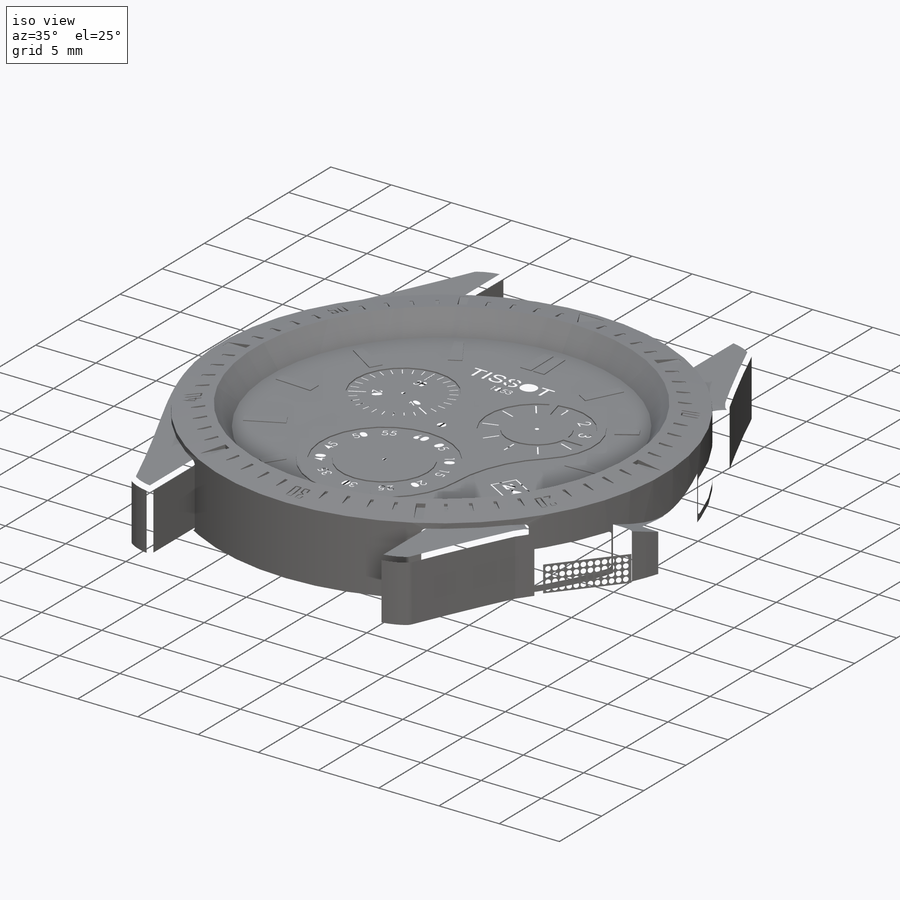
[diagram: iso view]
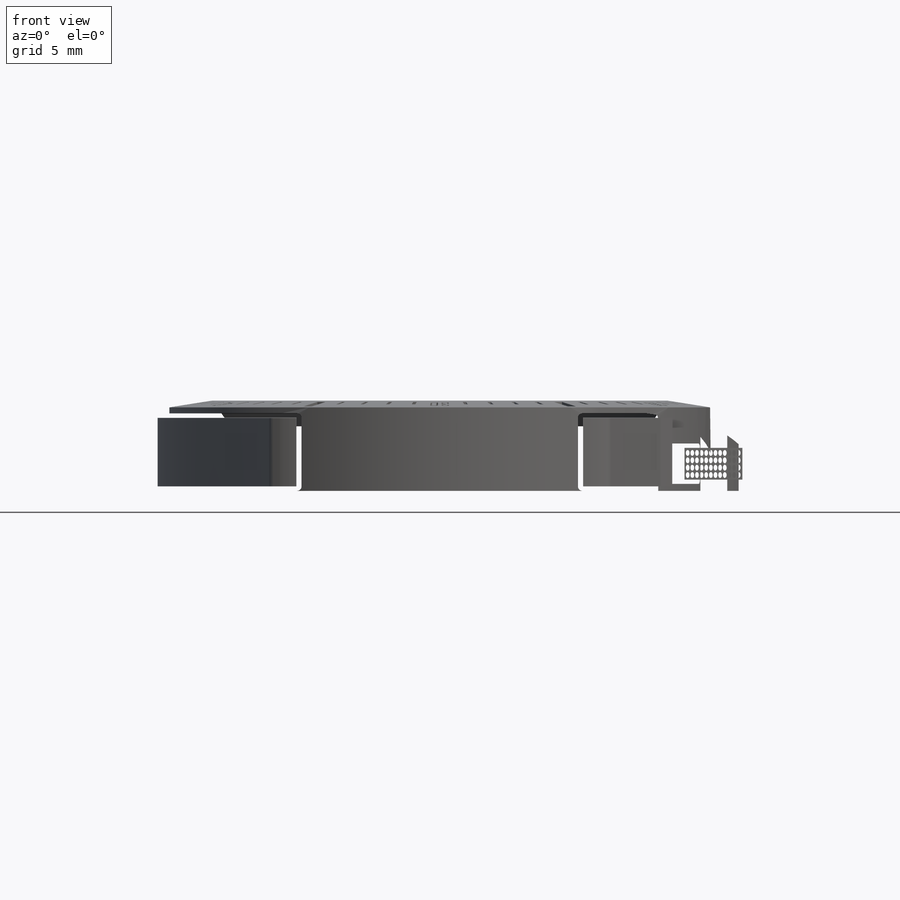
[diagram: front view]
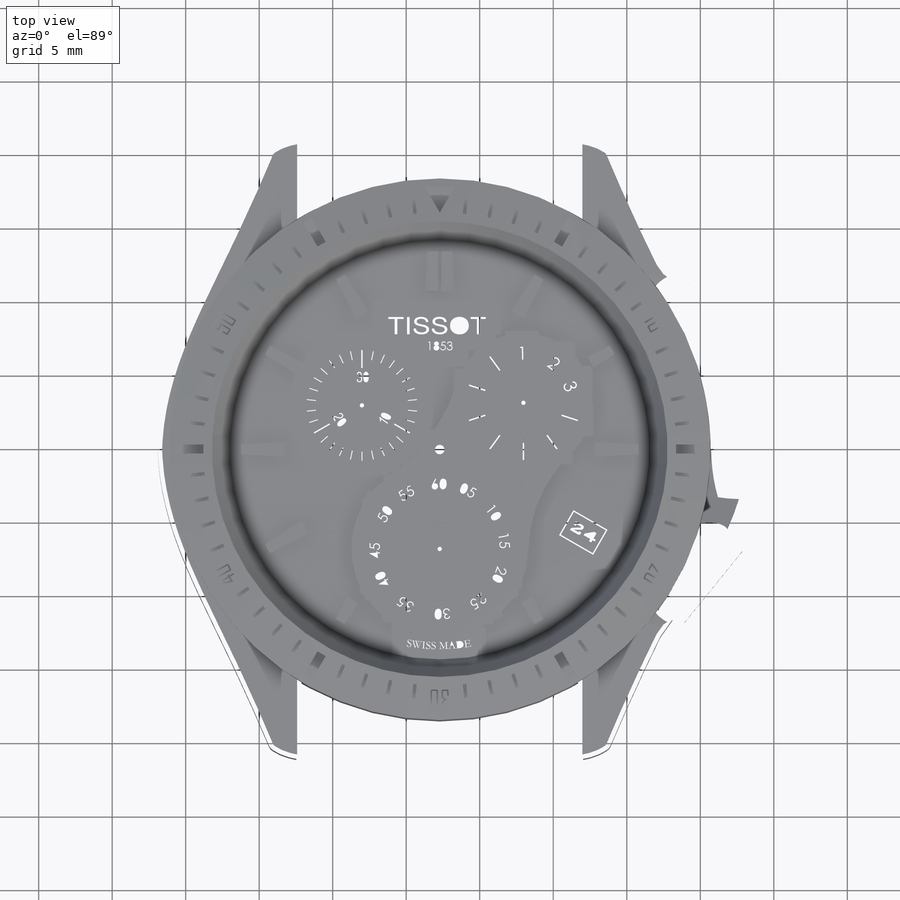
[diagram: top view]
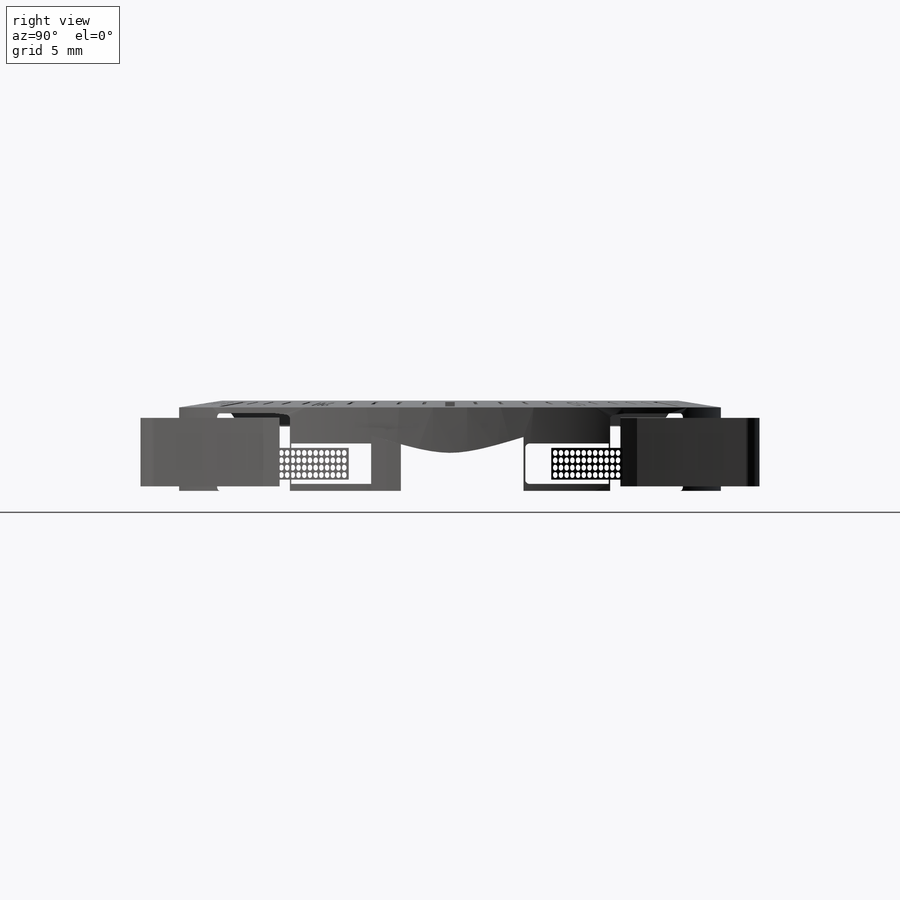
[diagram: right view]
SOLIDWORKS PART (.sldprt)
format: sldprt  version: not decoded by parser v0  size: 7,666,688 bytes
history: native  units: mm
features: sketch x53, cut_extrude x20, extrude x19, pattern_circular x8, plane x6, fillet x5, chamfer x2, dome x2, pattern_linear x2, material x1, mirror x1 (+11 scaffold rows collapsed)
feature tree (130):
  scaffold x11  (default folders/planes/origin — collapsed)
  material  "Material <not specified>"
  sketch  "Sketch2"  dims[D1=630.0mm]
  extrude  "Boss-Extrude1"  Depth=100mm
  sketch  "Sketch3"  dims[D1=530.0mm]
  cut_extrude  "Cut-Extrude1"  Depth=30mm
  chamfer  "Chamfer1"  Distance=30mm Angle=35deg
  chamfer  "Chamfer2"  Distance=8mm Angle=81deg
  sketch  "Sketch5"  dims[c1.D1=~282.267853mm c2.D1=30.0deg c2.D2=8.5mm c2.D3=51.0mm c2.D4=5.8mm]
  extrude  "Boss-Extrude2"  Depth=1mm
  pattern_circular  "CirPattern1"  Count=11 Angle=30deg
  sketch  "Sketch6"  dims[D1=405.0mm]
  sketch  "Sketch7"
  cut_extrude  "Cut-Extrude3"  Depth=1mm
  pattern_circular  "CirPattern2"  Count=6 Angle=30deg
  sketch  "Sketch9"  dims[c1.D2=30.0deg c1.D3=~206.527169mm c1.D4=~206.527169mm c2.D4=30.0deg c3.D4=4.0mm]
  extrude  "Boss-Extrude4"  Depth=1mm
  sketch  "Sketch4"  dims[D1=134.0mm D2=140.0mm D3=180.0mm D4=85.0mm D5=122.0mm D8=~355.473442mm D6=11.0mm D7=13.0mm]
  extrude  "Boss-Extrude6"  Depth=1.5mm
  cut_extrude  "Cut-Extrude5"  [1 undecoded]
  sketch  "Sketch4<9>"  dims[D1=1.5mm]
  plane  "Plane1"  Offset=15mm
  sketch  "Sketch11"
  extrude  "Boss-Extrude7"  Depth=70mm
  sketch  "Sketch12"  dims[D1=12.0mm]
  extrude  "Boss-Extrude8"  Depth=90mm
  cut_extrude  "Cut-Extrude6"  [1 undecoded]
  sketch  "Sketch11<2>"
  plane  "Plane2"  Offset=330mm
  sketch  "Sketch13"
  sketch  "Sketch14"
  sketch  "Sketch18"  dims[D1=20.0mm D2=30.0mm]
  cut_extrude  "Cut-Extrude9"  Depth=7mm
  sketch  "Sketch20"  dims[c1.D1=~510.921934mm c2.D1=30.0deg c2.D2=11.0mm c2.D3=32.0mm]
  cut_extrude  "Cut-Extrude10"  Depth=7mm
  sketch  "Sketch22"  dims[c1.D1=~424.100649mm c2.D1=6.0deg c2.D2=4.0mm c2.D3=16.5mm]
  cut_extrude  "Cut-Extrude11"  Depth=5mm
  pattern_circular  "CirPattern3"  Count=11 Angle=30deg
  pattern_circular  "CirPattern4"  Count=59 Angle=6deg
  sketch  "Sketch25"
  cut_extrude  "Cut-Extrude12"  Depth=6mm
  sketch  "Sketch26"
  cut_extrude  "Cut-Extrude13"  Depth=1mm
  sketch  "Sketch27"  dims[c1.D1=~82.320106mm c2.D1=36.0deg c2.D2=~91.417287mm c3.D2=54.0deg c4.D2=~91.417287mm c5.D2=36.0deg c5.D3=~86.943006mm c6.D3=36.0deg c6.D4=~77.72573mm c7.D4=36.0deg c7.D5=~65.843514mm c8.D5=36.0deg c8.D6=~75.621934mm c9.D6=36.0deg c9.D7=~76.796819mm c10.D7=36.0deg c10.D8=~64.21081mm c11.D8=36.0deg c11.D9=1.6mm c11.D4=20.0mm]
  cut_extrude  "Cut-Extrude14"  Depth=1mm
  pattern_circular  "CirPattern5"  Count=7 Angle=36deg
  sketch  "Sketch29"  dims[D1=1.5mm D2=21.0mm]
  cut_extrude  "Cut-Extrude15"  Depth=1mm
  pattern_circular  "CirPattern6"  Count=3 Angle=120deg
  sketch  "Sketch30"  dims[c1.D1=~79.666419mm c2.D1=12.0deg c2.D2=~3.398926mm c3.D2=90.0deg c4.D2=1.0mm]
  cut_extrude  "Cut-Extrude16"  Depth=1mm
  pattern_circular  "CirPattern7"  Count=29 Angle=12deg
  sketch  "Sketch31"
  cut_extrude  "Cut-Extrude17"  Depth=1mm
  sketch  "Sketch32"
  extrude  "Boss-Extrude9"  Depth=1mm
  sketch  "Sketch33"
  extrude  "Boss-Extrude10"  Depth=1mm
  sketch  "Sketch34"  dims[c1.D1=~345.177028mm c2.D1=60.0deg c2.D2=1.5mm]
  extrude  "Boss-Extrude11"  Depth=1.2mm
  sketch  "Sketch35"  dims[D1=0.0mm D2=0.0mm]
  extrude  "Boss-Extrude12"  Depth=1mm
  fillet  "Fillet3"  Radius=0.75mm
  sketch  "Sketch36"  dims[D1=11.0mm]
  extrude  "Boss-Extrude13"  Depth=20mm
  sketch  "Sketch37"  dims[D1=4.0mm]
  cut_extrude  "Cut-Extrude18"  Depth=15mm
  sketch  "Sketch38"
  sketch  "Sketch39"
  sketch  "Sketch40"
  sketch  "Sketch41"
  sketch  "Sketch42"
  extrude  "Boss-Extrude14"  [1 undecoded]
  plane  "Plane3"  Offset=373mm
  sketch  "Sketch43"
  cut_extrude  "Cut-Extrude20"  [1 undecoded]
  plane  "Plane4"  Offset=375mm
  sketch  "Sketch46"  dims[D1=92.4mm]
  sketch  "Sketch47"  dims[D2=~177.13983mm D1=110.0mm]
  cut_extrude  "Cut-Extrude21"  [1 undecoded]
  sketch  "Sketch48"
  cut_extrude  "Cut-Extrude23"  [1 undecoded]
  sketch  "Sketch49"  dims[D2=7.0mm D1=0.0mm D3=2.0mm]
  plane  "Plane5"  Offset=3mm
  sketch  "Sketch51"
  extrude  "Boss-Extrude16"  Depth=47mm
  fillet  "Fillet5"  Radius=5mm
  fillet  "Fillet6"  Radius=4mm
  mirror  "Mirror1"
  sketch  "Sketch52"
  extrude  "Boss-Extrude17"  [1 undecoded]
  sketch  "Sketch53"  dims[D1=0.0mm]
  extrude  "Boss-Extrude18"  Depth=10mm
  sketch  "Sketch56"
  cut_extrude  "Cut-Extrude24"  [1 undecoded]
  pattern_circular  "CirPattern8"  Count=6 Angle=60deg
  sketch  "Sketch57"
  cut_extrude  "Cut-Extrude25"  Depth=2mm
  sketch  "Sketch58"  dims[D1=5.0mm D2=2.0mm D3=11.0mm D4=4.0mm D5=11.0mm D6=4.0mm]
  extrude  "Boss-Extrude20"  Depth=4mm
  sketch  "Sketch59"  dims[D1=2.0mm D2=5.0mm D3=2.0mm D4=5.0mm]
  extrude  "Boss-Extrude21"  Depth=4mm
  sketch  "Sketch60"
  cut_extrude  "Cut-Extrude26"  Depth=1mm
  sketch  "Sketch61"  dims[D1=2.0mm D2=2.5mm]
  sketch  "Sketch62"
  sketch  "Sketch63"  dims[D1=2.0mm D2=2.5mm]
  sketch  "Sketch64"
  fillet  "Fillet9"  Radius=0.3mm
  fillet  "Fillet10"  Radius=0.3mm
  sketch  "Sketch65"  dims[D3=0.4mm D1=0.35mm D2=0.35mm]
  extrude  "Boss-Extrude22"  Depth=0.03mm
  dome  "Dome1"
  pattern_linear  "LPattern2"  Count1=12 Count2=4 Spacing1=0.5mm Spacing2=0.5mm
  sketch  "Sketch66"  dims[D1=0.4mm D2=0.35mm D3=0.35mm]
  extrude  "Boss-Extrude23"  Depth=0.03mm
  dome  "Dome2"
  pattern_linear  "LPattern3"  Count1=12 Count2=4 Spacing1=0.5mm Spacing2=0.5mm
  plane  "Plane6"  Offset=20.75mm
  sketch  "Sketch67"  dims[D1=2.0mm D2=2.6mm]
decode coverage: 77 of 112 modeling features carry decoded parameters
note: ~ marks probable driven/reference dimensions
note: 8 parameter values undecoded
summary: no parameter record found for 8 features
note: suppression state not decoded; provenance and decode notes live in map.json
